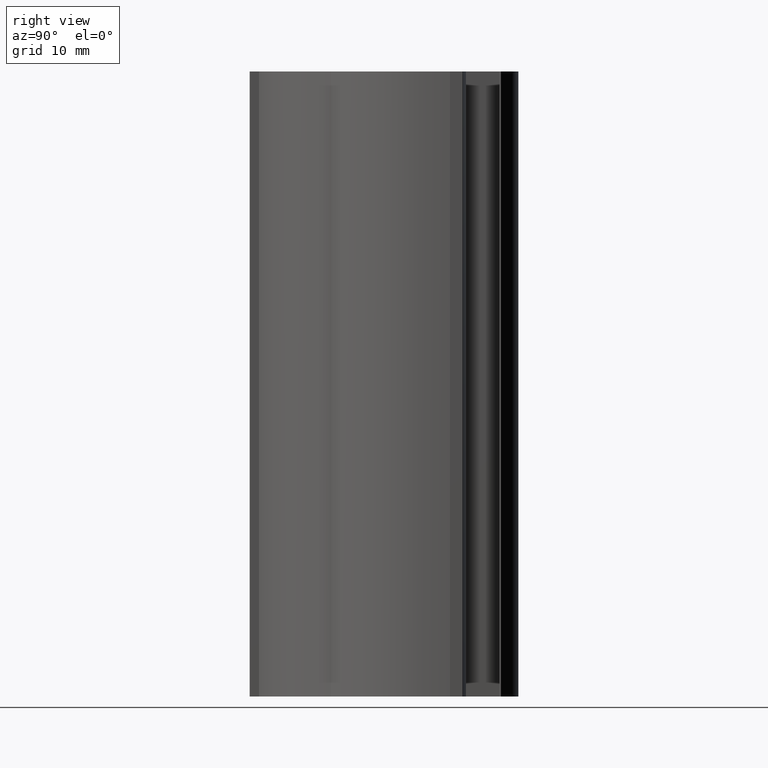
[diagram: clean part render]
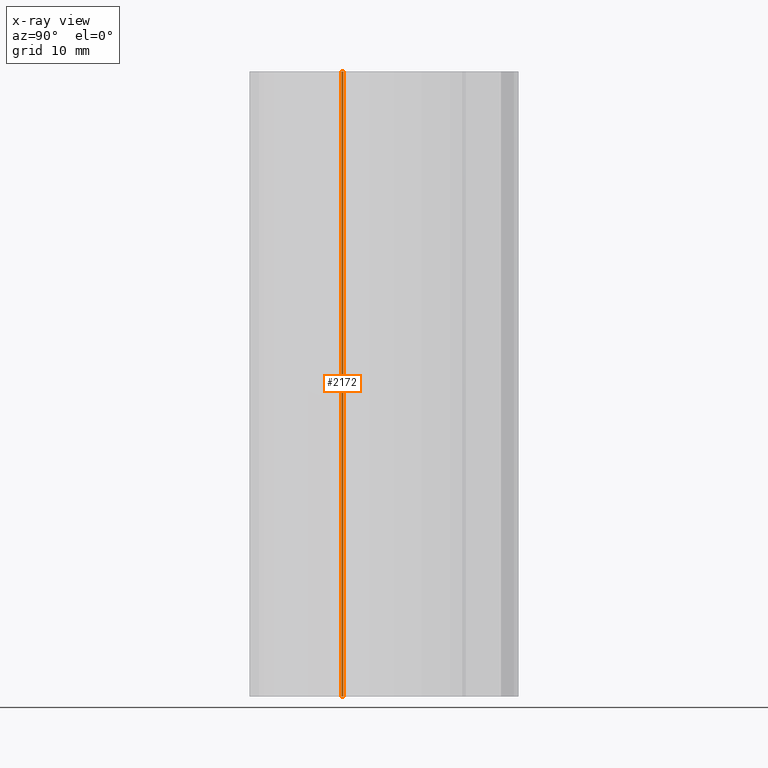
[diagram: x-ray — body ghosted, one internal face saturated and labeled with its STEP entity id]
A machine part, right view, then the same camera in x-ray: the body is ghosted and one INTERNAL B-rep face — a face not visible from any outside direction — is saturated and labeled: STEP entity #2172.
In plain terms, the highlighted planar face has unit normal (-1, 0, 0).
Its self-contained STEP definition (entity closure, byte-faithful):
#2116=CARTESIAN_POINT('',(22.500000000000000,-12.000263909870114,-100.0));
#2117=VERTEX_POINT('',#2116);
#2124=CARTESIAN_POINT('',(22.500000000000000,-12.000263909870114,0.0));
#2125=VERTEX_POINT('',#2124);
#2126=CARTESIAN_POINT('',(22.500000000000000,-12.000263909870114,-100.0));
#2127=DIRECTION('',(0.0,0.0,1.0));
#2128=VECTOR('',#2127,100.0);
#2129=LINE('',#2126,#2128);
#2130=EDGE_CURVE('',#2117,#2125,#2129,.T.);
#2142=CARTESIAN_POINT('',(22.500000000000000,-12.000263909870114,-100.0));
#2143=DIRECTION('',(-1.0,0.0,0.0));
#2144=DIRECTION('',(0.0,-1.0,0.0));
#2145=AXIS2_PLACEMENT_3D('',#2142,#2143,#2144);
#2146=PLANE('',#2145);
#2147=CARTESIAN_POINT('',(22.500000000000000,-12.300263909870296,-100.0));
#2148=VERTEX_POINT('',#2147);
#2149=CARTESIAN_POINT('',(22.500000000000000,-12.000263909870114,-100.0));
#2150=DIRECTION('',(0.0,-1.0,0.0));
#2151=VECTOR('',#2150,0.300000000000182);
#2152=LINE('',#2149,#2151);
#2153=EDGE_CURVE('',#2117,#2148,#2152,.T.);
#2154=ORIENTED_EDGE('',*,*,#2153,.T.);
#2155=CARTESIAN_POINT('',(22.500000000000000,-12.300263909870296,0.0));
#2156=VERTEX_POINT('',#2155);
#2157=CARTESIAN_POINT('',(22.500000000000000,-12.300263909870296,-100.0));
#2158=DIRECTION('',(0.0,0.0,1.0));
#2159=VECTOR('',#2158,100.0);
#2160=LINE('',#2157,#2159);
#2161=EDGE_CURVE('',#2148,#2156,#2160,.T.);
#2162=ORIENTED_EDGE('',*,*,#2161,.T.);
#2163=CARTESIAN_POINT('',(22.500000000000000,-12.000263909870114,0.0));
#2164=DIRECTION('',(0.0,-1.0,0.0));
#2165=VECTOR('',#2164,0.300000000000182);
#2166=LINE('',#2163,#2165);
#2167=EDGE_CURVE('',#2125,#2156,#2166,.T.);
#2168=ORIENTED_EDGE('',*,*,#2167,.F.);
#2169=ORIENTED_EDGE('',*,*,#2130,.F.);
#2170=EDGE_LOOP('',(#2154,#2162,#2168,#2169));
#2171=FACE_OUTER_BOUND('',#2170,.T.);
#2172=ADVANCED_FACE('',(#2171),#2146,.T.);